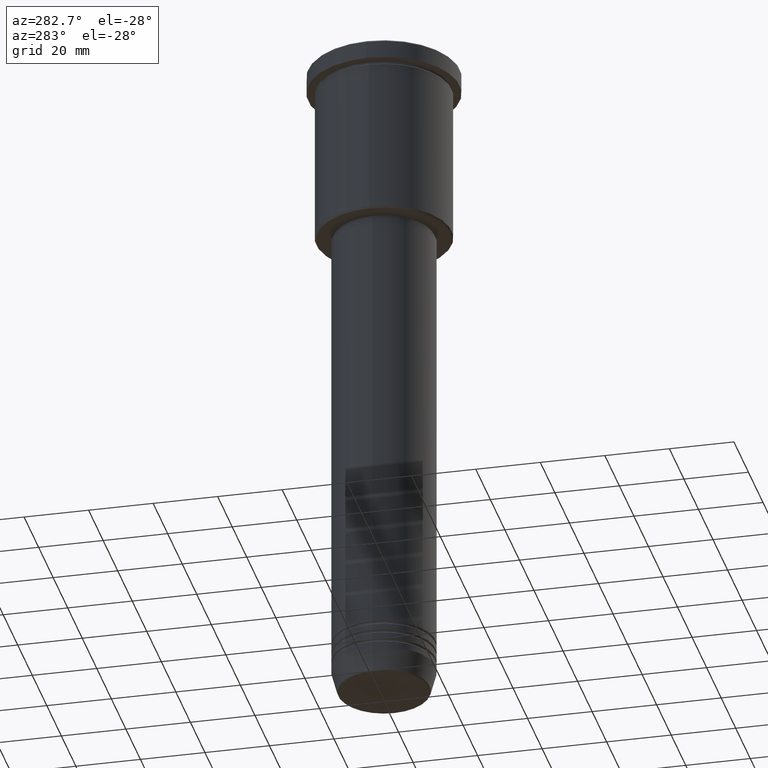
[diagram: clean part render]
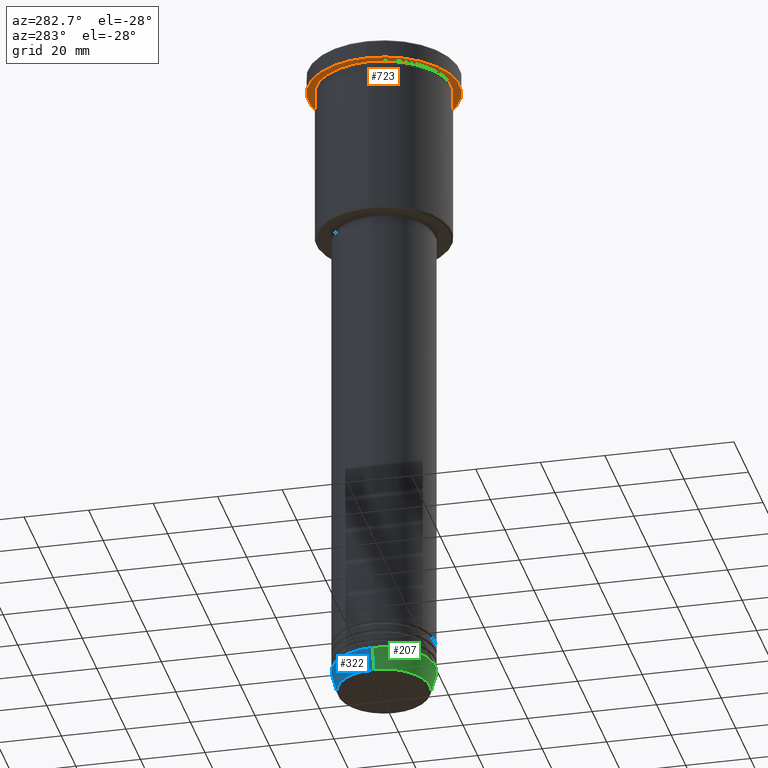
[diagram: same view with three faces highlighted in distinct colors, each labeled with its STEP entity id]
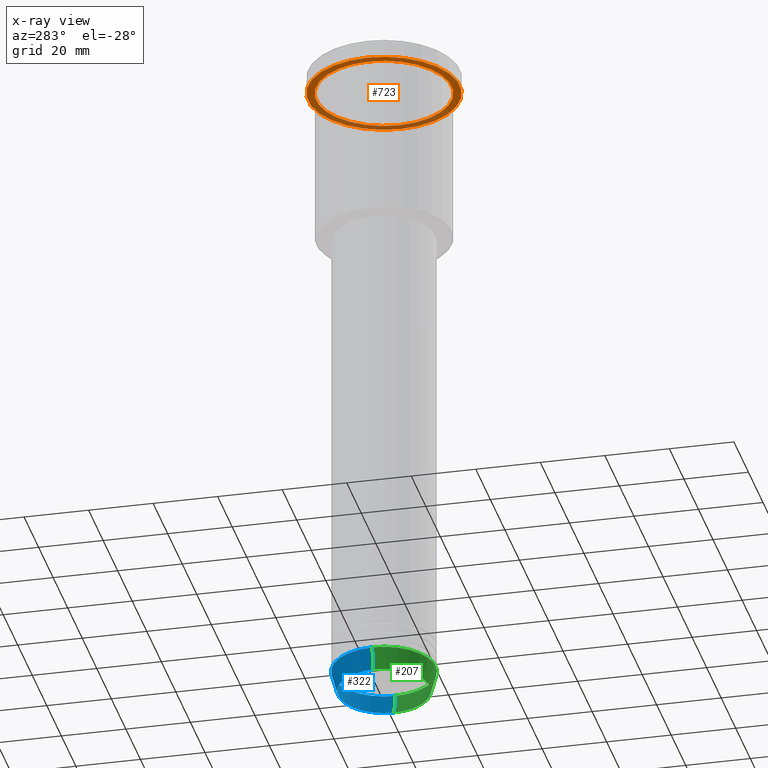
[diagram: x-ray of the same camera — body ghosted, the three highlighted faces saturated]
A machine part, auxiliary view with three faces highlighted in distinct colors.
The next image is the same camera in x-ray (body ghosted, the three faces saturated) — at least one of them is partly hidden behind the body in this view.
Their STEP definitions:

[orange] entity #723 — the highlighted planar face has unit normal (0, 0, -1).
#26 = AXIS2_PLACEMENT_3D ( 'NONE', #834, #922, #195 ) ;
#38 = CIRCLE ( 'NONE', #584, 21.00000000000000000 ) ;
#55 = FACE_BOUND ( 'NONE', #533, .T. ) ;
#64 = DIRECTION ( 'NONE',  ( -0.000000000000000000, -0.000000000000000000, 1.000000000000000000 ) ) ;
#98 = ORIENTED_EDGE ( 'NONE', *, *, #874, .F. ) ;
#114 = CIRCLE ( 'NONE', #26, 23.50000000000000000 ) ;
#123 = PLANE ( 'NONE',  #763 ) ;
#195 = DIRECTION ( 'NONE',  ( 1.000000000000000000, 0.000000000000000000, 0.000000000000000000 ) ) ;
#233 = DIRECTION ( 'NONE',  ( -0.000000000000000000, -0.000000000000000000, 1.000000000000000000 ) ) ;
#246 = EDGE_CURVE ( 'NONE', #944, #995, #38, .T. ) ;
#255 = VERTEX_POINT ( 'NONE', #989 ) ;
#263 = CARTESIAN_POINT ( 'NONE',  ( 21.00000000000000000, 2.571758278209441661E-15, -5.999999999999994671 ) ) ;
#334 = CIRCLE ( 'NONE', #831, 23.50000000000000000 ) ;
#348 = AXIS2_PLACEMENT_3D ( 'NONE', #465, #736, #742 ) ;
#363 = EDGE_CURVE ( 'NONE', #995, #944, #1080, .T. ) ;
#414 = DIRECTION ( 'NONE',  ( 1.000000000000000000, 0.000000000000000000, 0.000000000000000000 ) ) ;
#465 = CARTESIAN_POINT ( 'NONE',  ( 0.000000000000000000, 0.000000000000000000, -5.999999999999994671 ) ) ;
#482 = CARTESIAN_POINT ( 'NONE',  ( 0.000000000000000000, 23.50000000000000000, -5.999999999999994671 ) ) ;
#533 = EDGE_LOOP ( 'NONE', ( #697, #974 ) ) ;
#555 = EDGE_LOOP ( 'NONE', ( #98, #725 ) ) ;
#583 = FACE_OUTER_BOUND ( 'NONE', #555, .T. ) ;
#584 = AXIS2_PLACEMENT_3D ( 'NONE', #1075, #233, #608 ) ;
#591 = DIRECTION ( 'NONE',  ( 0.000000000000000000, 0.000000000000000000, -1.000000000000000000 ) ) ;
#608 = DIRECTION ( 'NONE',  ( -1.000000000000000000, 0.000000000000000000, 0.000000000000000000 ) ) ;
#664 = VERTEX_POINT ( 'NONE', #1037 ) ;
#697 = ORIENTED_EDGE ( 'NONE', *, *, #246, .T. ) ;
#723 = ADVANCED_FACE ( 'NONE', ( #55, #583 ), #123, .T. ) ;
#725 = ORIENTED_EDGE ( 'NONE', *, *, #1093, .F. ) ;
#736 = DIRECTION ( 'NONE',  ( -0.000000000000000000, -0.000000000000000000, 1.000000000000000000 ) ) ;
#742 = DIRECTION ( 'NONE',  ( -1.000000000000000000, 0.000000000000000000, 0.000000000000000000 ) ) ;
#763 = AXIS2_PLACEMENT_3D ( 'NONE', #482, #591, #1144 ) ;
#831 = AXIS2_PLACEMENT_3D ( 'NONE', #897, #64, #414 ) ;
#834 = CARTESIAN_POINT ( 'NONE',  ( 0.000000000000000000, 0.000000000000000000, -5.999999999999994671 ) ) ;
#874 = EDGE_CURVE ( 'NONE', #255, #664, #334, .T. ) ;
#897 = CARTESIAN_POINT ( 'NONE',  ( 0.000000000000000000, 0.000000000000000000, -5.999999999999994671 ) ) ;
#922 = DIRECTION ( 'NONE',  ( -0.000000000000000000, -0.000000000000000000, 1.000000000000000000 ) ) ;
#944 = VERTEX_POINT ( 'NONE', #1167 ) ;
#974 = ORIENTED_EDGE ( 'NONE', *, *, #363, .T. ) ;
#989 = CARTESIAN_POINT ( 'NONE',  ( 23.50000000000000000, 0.000000000000000000, -5.999999999999994671 ) ) ;
#995 = VERTEX_POINT ( 'NONE', #263 ) ;
#1037 = CARTESIAN_POINT ( 'NONE',  ( -23.50000000000000000, 2.877919977996280320E-15, -5.999999999999994671 ) ) ;
#1075 = CARTESIAN_POINT ( 'NONE',  ( 0.000000000000000000, 0.000000000000000000, -5.999999999999994671 ) ) ;
#1080 = CIRCLE ( 'NONE', #348, 21.00000000000000000 ) ;
#1093 = EDGE_CURVE ( 'NONE', #664, #255, #114, .T. ) ;
#1144 = DIRECTION ( 'NONE',  ( -1.000000000000000000, 0.000000000000000000, -0.000000000000000000 ) ) ;
#1167 = CARTESIAN_POINT ( 'NONE',  ( -21.00000000000000000, 0.000000000000000000, -5.999999999999994671 ) ) ;

[blue] entity #322 — the highlighted conical surface has half-angle 15 deg.
#14 = DIRECTION ( 'NONE',  ( 1.000000000000000000, 0.000000000000000000, 0.000000000000000000 ) ) ;
#22 = AXIS2_PLACEMENT_3D ( 'NONE', #653, #362, #744 ) ;
#27 = EDGE_CURVE ( 'NONE', #268, #935, #657, .T. ) ;
#35 = EDGE_CURVE ( 'NONE', #672, #636, #778, .T. ) ;
#110 = CONICAL_SURFACE ( 'NONE', #388, 16.00000000000000000, 0.2617993877991495744 ) ;
#139 = ORIENTED_EDGE ( 'NONE', *, *, #295, .F. ) ;
#164 = AXIS2_PLACEMENT_3D ( 'NONE', #466, #563, #438 ) ;
#188 = CARTESIAN_POINT ( 'NONE',  ( -16.00000000000000000, 1.959434878635765131E-15, -204.0000000000000284 ) ) ;
#222 = DIRECTION ( 'NONE',  ( -0.2588190451025209060, 3.169619151431766790E-17, 0.9659258262890682012 ) ) ;
#236 = CIRCLE ( 'NONE', #164, 16.00000000000000000 ) ;
#268 = VERTEX_POINT ( 'NONE', #656 ) ;
#295 = EDGE_CURVE ( 'NONE', #935, #636, #236, .T. ) ;
#322 = ADVANCED_FACE ( 'NONE', ( #516 ), #110, .T. ) ;
#362 = DIRECTION ( 'NONE',  ( -0.000000000000000000, -0.000000000000000000, 1.000000000000000000 ) ) ;
#388 = AXIS2_PLACEMENT_3D ( 'NONE', #844, #916, #14 ) ;
#392 = ORIENTED_EDGE ( 'NONE', *, *, #27, .F. ) ;
#418 = CARTESIAN_POINT ( 'NONE',  ( -16.00000000000000000, 1.959434878635765131E-15, -204.0000000000000284 ) ) ;
#438 = DIRECTION ( 'NONE',  ( 1.000000000000000000, 0.000000000000000000, 0.000000000000000000 ) ) ;
#466 = CARTESIAN_POINT ( 'NONE',  ( 0.000000000000000000, 0.000000000000000000, -204.0000000000000284 ) ) ;
#467 = DIRECTION ( 'NONE',  ( 0.2588190451025209060, 0.000000000000000000, 0.9659258262890682012 ) ) ;
#470 = VECTOR ( 'NONE', #222, 1000.000000000000000 ) ;
#497 = ORIENTED_EDGE ( 'NONE', *, *, #540, .T. ) ;
#516 = FACE_OUTER_BOUND ( 'NONE', #960, .T. ) ;
#540 = EDGE_CURVE ( 'NONE', #268, #672, #919, .T. ) ;
#560 = CARTESIAN_POINT ( 'NONE',  ( 16.00000000000000000, 0.000000000000000000, -204.0000000000000284 ) ) ;
#563 = DIRECTION ( 'NONE',  ( -0.000000000000000000, -0.000000000000000000, 1.000000000000000000 ) ) ;
#604 = VECTOR ( 'NONE', #467, 1000.000000000000000 ) ;
#636 = VERTEX_POINT ( 'NONE', #188 ) ;
#653 = CARTESIAN_POINT ( 'NONE',  ( 0.000000000000000000, 0.000000000000000000, -210.6294095225512706 ) ) ;
#656 = CARTESIAN_POINT ( 'NONE',  ( 14.22365507213720015, 0.000000000000000000, -210.6294095225512706 ) ) ;
#657 = LINE ( 'NONE', #560, #604 ) ;
#672 = VERTEX_POINT ( 'NONE', #959 ) ;
#744 = DIRECTION ( 'NONE',  ( 1.000000000000000000, 0.000000000000000000, 0.000000000000000000 ) ) ;
#778 = LINE ( 'NONE', #418, #470 ) ;
#844 = CARTESIAN_POINT ( 'NONE',  ( 0.000000000000000000, 0.000000000000000000, -204.0000000000000284 ) ) ;
#905 = CARTESIAN_POINT ( 'NONE',  ( 16.00000000000000000, 0.000000000000000000, -204.0000000000000284 ) ) ;
#916 = DIRECTION ( 'NONE',  ( -0.000000000000000000, -0.000000000000000000, 1.000000000000000000 ) ) ;
#919 = CIRCLE ( 'NONE', #22, 14.22365507213720015 ) ;
#926 = ORIENTED_EDGE ( 'NONE', *, *, #35, .T. ) ;
#935 = VERTEX_POINT ( 'NONE', #905 ) ;
#959 = CARTESIAN_POINT ( 'NONE',  ( -14.22365507213720015, 1.850665122131324520E-15, -210.6294095225512706 ) ) ;
#960 = EDGE_LOOP ( 'NONE', ( #497, #926, #139, #392 ) ) ;

[green] entity #207 — the highlighted conical surface has half-angle 15 deg.
#2 = DIRECTION ( 'NONE',  ( -0.000000000000000000, -0.000000000000000000, 1.000000000000000000 ) ) ;
#27 = EDGE_CURVE ( 'NONE', #268, #935, #657, .T. ) ;
#35 = EDGE_CURVE ( 'NONE', #672, #636, #778, .T. ) ;
#85 = DIRECTION ( 'NONE',  ( -0.000000000000000000, -0.000000000000000000, 1.000000000000000000 ) ) ;
#141 = EDGE_CURVE ( 'NONE', #672, #268, #918, .T. ) ;
#167 = CIRCLE ( 'NONE', #709, 16.00000000000000000 ) ;
#188 = CARTESIAN_POINT ( 'NONE',  ( -16.00000000000000000, 1.959434878635765131E-15, -204.0000000000000284 ) ) ;
#198 = CONICAL_SURFACE ( 'NONE', #527, 16.00000000000000000, 0.2617993877991495744 ) ;
#207 = ADVANCED_FACE ( 'NONE', ( #368 ), #198, .T. ) ;
#222 = DIRECTION ( 'NONE',  ( -0.2588190451025209060, 3.169619151431766790E-17, 0.9659258262890682012 ) ) ;
#268 = VERTEX_POINT ( 'NONE', #656 ) ;
#290 = AXIS2_PLACEMENT_3D ( 'NONE', #541, #2, #545 ) ;
#368 = FACE_OUTER_BOUND ( 'NONE', #931, .T. ) ;
#418 = CARTESIAN_POINT ( 'NONE',  ( -16.00000000000000000, 1.959434878635765131E-15, -204.0000000000000284 ) ) ;
#467 = DIRECTION ( 'NONE',  ( 0.2588190451025209060, 0.000000000000000000, 0.9659258262890682012 ) ) ;
#469 = ORIENTED_EDGE ( 'NONE', *, *, #35, .F. ) ;
#470 = VECTOR ( 'NONE', #222, 1000.000000000000000 ) ;
#527 = AXIS2_PLACEMENT_3D ( 'NONE', #562, #85, #819 ) ;
#541 = CARTESIAN_POINT ( 'NONE',  ( 0.000000000000000000, 0.000000000000000000, -210.6294095225512706 ) ) ;
#545 = DIRECTION ( 'NONE',  ( 1.000000000000000000, 0.000000000000000000, 0.000000000000000000 ) ) ;
#560 = CARTESIAN_POINT ( 'NONE',  ( 16.00000000000000000, 0.000000000000000000, -204.0000000000000284 ) ) ;
#562 = CARTESIAN_POINT ( 'NONE',  ( 0.000000000000000000, 0.000000000000000000, -204.0000000000000284 ) ) ;
#601 = DIRECTION ( 'NONE',  ( 1.000000000000000000, 0.000000000000000000, 0.000000000000000000 ) ) ;
#604 = VECTOR ( 'NONE', #467, 1000.000000000000000 ) ;
#636 = VERTEX_POINT ( 'NONE', #188 ) ;
#656 = CARTESIAN_POINT ( 'NONE',  ( 14.22365507213720015, 0.000000000000000000, -210.6294095225512706 ) ) ;
#657 = LINE ( 'NONE', #560, #604 ) ;
#672 = VERTEX_POINT ( 'NONE', #959 ) ;
#709 = AXIS2_PLACEMENT_3D ( 'NONE', #909, #798, #601 ) ;
#719 = ORIENTED_EDGE ( 'NONE', *, *, #141, .T. ) ;
#778 = LINE ( 'NONE', #418, #470 ) ;
#798 = DIRECTION ( 'NONE',  ( -0.000000000000000000, -0.000000000000000000, 1.000000000000000000 ) ) ;
#819 = DIRECTION ( 'NONE',  ( 1.000000000000000000, 0.000000000000000000, 0.000000000000000000 ) ) ;
#905 = CARTESIAN_POINT ( 'NONE',  ( 16.00000000000000000, 0.000000000000000000, -204.0000000000000284 ) ) ;
#909 = CARTESIAN_POINT ( 'NONE',  ( 0.000000000000000000, 0.000000000000000000, -204.0000000000000284 ) ) ;
#918 = CIRCLE ( 'NONE', #290, 14.22365507213720015 ) ;
#931 = EDGE_LOOP ( 'NONE', ( #469, #719, #1126, #1045 ) ) ;
#935 = VERTEX_POINT ( 'NONE', #905 ) ;
#936 = EDGE_CURVE ( 'NONE', #636, #935, #167, .T. ) ;
#959 = CARTESIAN_POINT ( 'NONE',  ( -14.22365507213720015, 1.850665122131324520E-15, -210.6294095225512706 ) ) ;
#1045 = ORIENTED_EDGE ( 'NONE', *, *, #936, .F. ) ;
#1126 = ORIENTED_EDGE ( 'NONE', *, *, #27, .T. ) ;